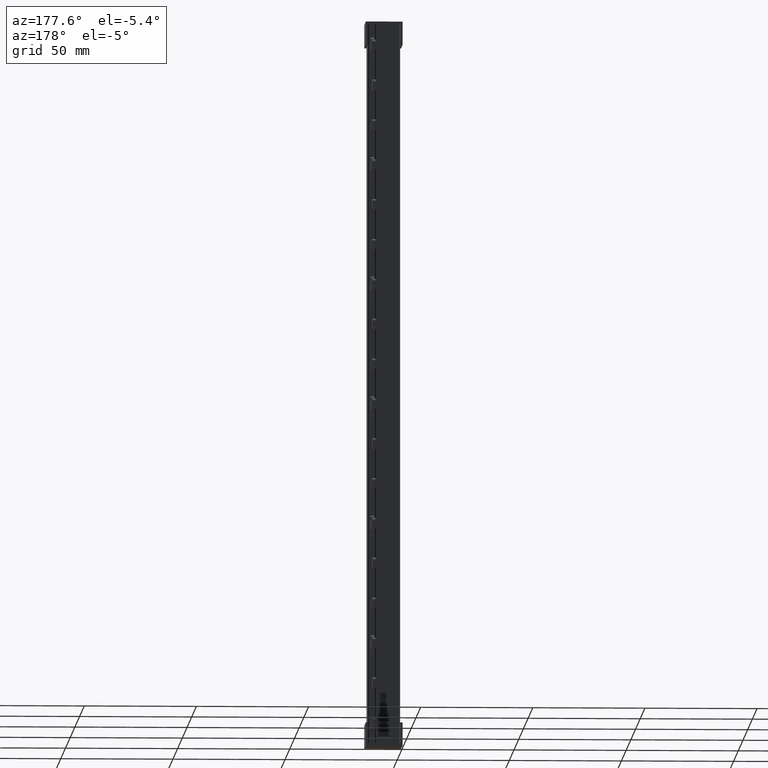
[diagram: clean part render]
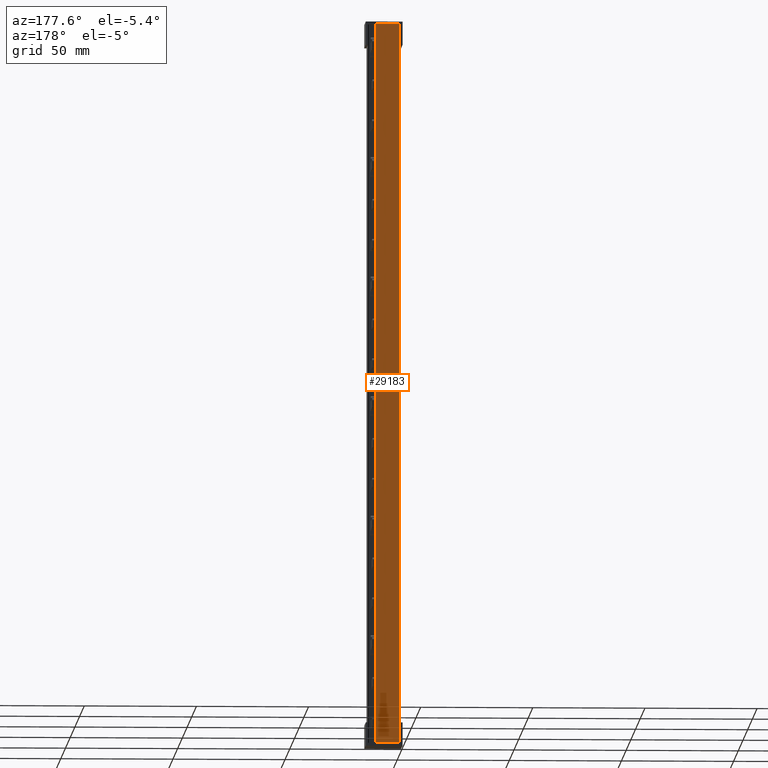
[diagram: same view with one face highlighted and labeled with its STEP entity id]
A machine part, auxiliary view. The second image highlights one B-rep face of the part: STEP entity #29183.
In plain terms, the highlighted planar face has unit normal (0, 1, 0).
Its self-contained STEP definition (entity closure, byte-faithful):
#1832 = AXIS2_PLACEMENT_3D ( 'NONE', #24309, #24315, #24337 ) ;
#2030 = VECTOR ( 'NONE', #25055, 1000.000000000000000 ) ;
#2121 = VECTOR ( 'NONE', #6614, 1000.000000000000000 ) ;
#2140 = VECTOR ( 'NONE', #6570, 1000.000000000000000 ) ;
#2156 = VECTOR ( 'NONE', #6536, 1000.000000000000000 ) ;
#6500 = CARTESIAN_POINT ( 'NONE',  ( 6.525548534933072600, 17.69999999999998500, 217.7999999999999800 ) ) ;
#6525 = LINE ( 'NONE', #6500, #2156 ) ;
#6536 = DIRECTION ( 'NONE',  ( 1.000000000000000000, 0.0000000000000000000, -0.0000000000000000000 ) ) ;
#6539 = CARTESIAN_POINT ( 'NONE',  ( 6.525548534933072600, 17.69999999999998500, -103.8000000000000000 ) ) ;
#6544 = LINE ( 'NONE', #6539, #2140 ) ;
#6570 = DIRECTION ( 'NONE',  ( -1.000000000000000000, -0.0000000000000000000, 0.0000000000000000000 ) ) ;
#6580 = LINE ( 'NONE', #6605, #2121 ) ;
#6605 = CARTESIAN_POINT ( 'NONE',  ( -0.1239999999999999300, 17.70000000000001400, 219.0000000000000000 ) ) ;
#6614 = DIRECTION ( 'NONE',  ( -0.0000000000000000000, -0.0000000000000000000, -1.000000000000000000 ) ) ;
#8410 = CARTESIAN_POINT ( 'NONE',  ( -0.1239999999999999700, 17.69999999999999900, 217.7999999999999800 ) ) ;
#8418 = CARTESIAN_POINT ( 'NONE',  ( -0.1239999999999999700, 17.69999999999999900, -103.8000000000000000 ) ) ;
#8436 = CARTESIAN_POINT ( 'NONE',  ( 10.24323328473354500, 17.69999999999998500, -103.8000000000000000 ) ) ;
#8447 = CARTESIAN_POINT ( 'NONE',  ( 10.24323328473354500, 17.69999999999998500, 217.7999999999999800 ) ) ;
#22931 = VERTEX_POINT ( 'NONE', #8410 ) ;
#22993 = VERTEX_POINT ( 'NONE', #8418 ) ;
#23031 = VERTEX_POINT ( 'NONE', #8436 ) ;
#23033 = VERTEX_POINT ( 'NONE', #8447 ) ;
#24309 = CARTESIAN_POINT ( 'NONE',  ( 6.525548534933072600, 17.69999999999998500, 219.0000000000000000 ) ) ;
#24315 = DIRECTION ( 'NONE',  ( 0.0000000000000000000, 1.000000000000000000, 0.0000000000000000000 ) ) ;
#24337 = DIRECTION ( 'NONE',  ( 0.0000000000000000000, -0.0000000000000000000, 1.000000000000000000 ) ) ;
#24340 = PLANE ( 'NONE',  #1832 ) ;
#24345 = FACE_OUTER_BOUND ( 'NONE', #27794, .T. ) ;
#24956 = LINE ( 'NONE', #24966, #2030 ) ;
#24966 = CARTESIAN_POINT ( 'NONE',  ( 10.24323328473354500, 17.69999999999998500, 219.0000000000000000 ) ) ;
#25055 = DIRECTION ( 'NONE',  ( -0.0000000000000000000, 0.0000000000000000000, -1.000000000000000000 ) ) ;
#27794 = EDGE_LOOP ( 'NONE', ( #30443, #30411, #30406, #30403 ) ) ;
#29183 = ADVANCED_FACE ( 'NONE', ( #24345 ), #24340, .T. ) ;
#29321 = EDGE_CURVE ( 'NONE', #23033, #23031, #24956, .T. ) ;
#29409 = EDGE_CURVE ( 'NONE', #22931, #23033, #6525, .T. ) ;
#29410 = EDGE_CURVE ( 'NONE', #23031, #22993, #6544, .T. ) ;
#29423 = EDGE_CURVE ( 'NONE', #22931, #22993, #6580, .T. ) ;
#30403 = ORIENTED_EDGE ( 'NONE', *, *, #29409, .T. ) ;
#30406 = ORIENTED_EDGE ( 'NONE', *, *, #29423, .F. ) ;
#30411 = ORIENTED_EDGE ( 'NONE', *, *, #29410, .T. ) ;
#30443 = ORIENTED_EDGE ( 'NONE', *, *, #29321, .T. ) ;